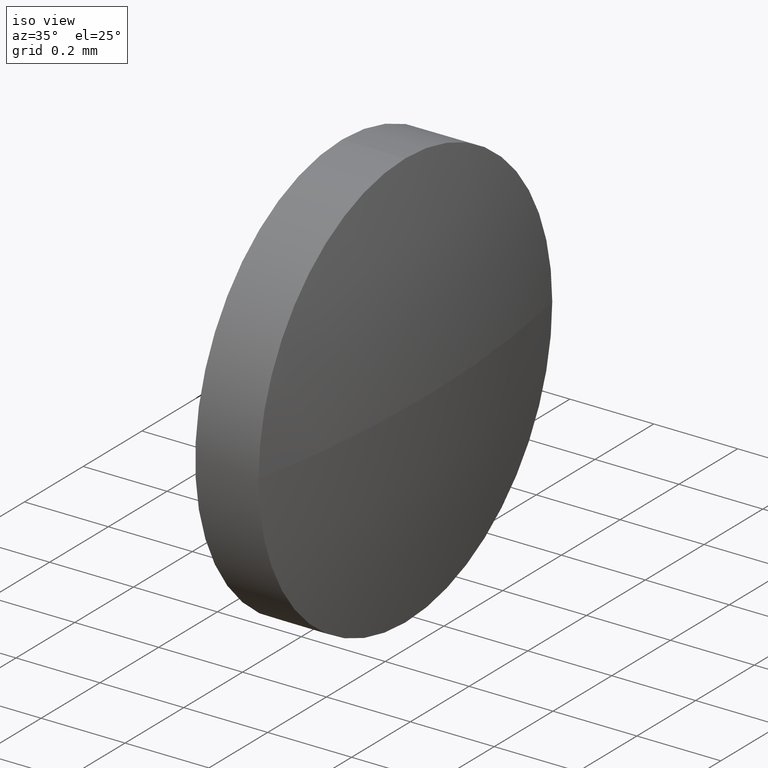
[diagram: clean part render]
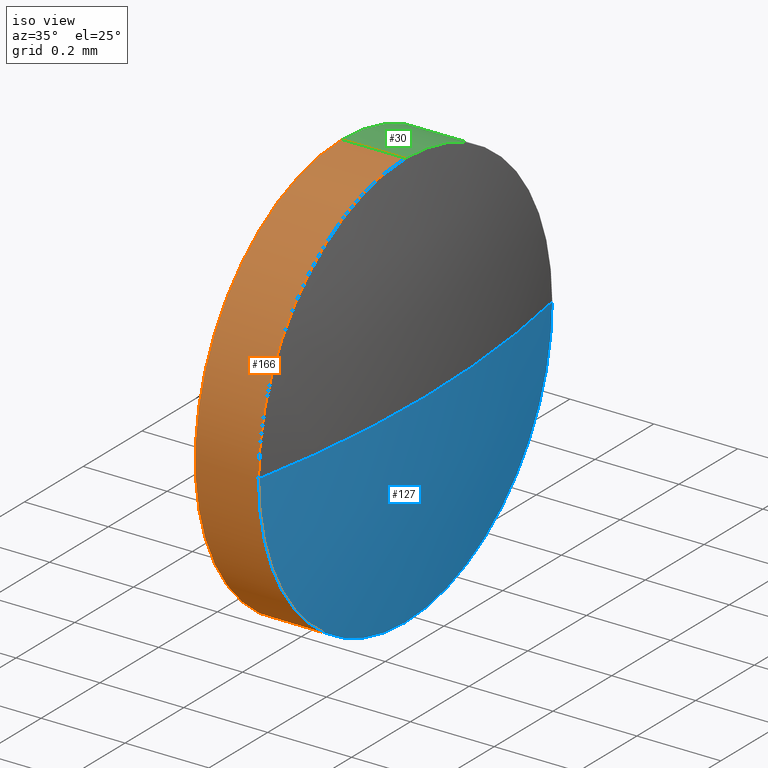
[diagram: same view with three faces highlighted in distinct colors, each labeled with its STEP entity id]
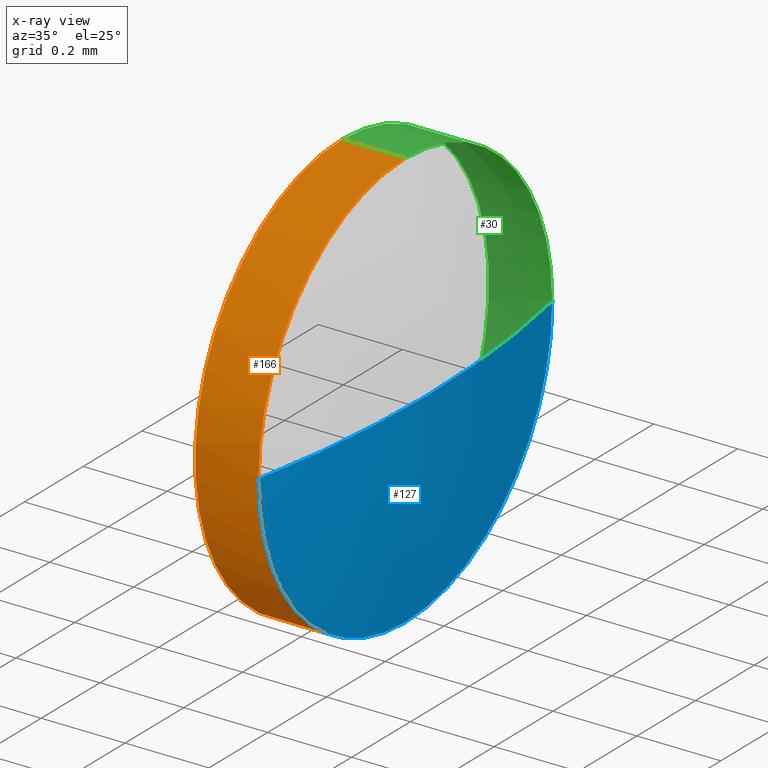
[diagram: x-ray of the same camera — body ghosted, the three highlighted faces saturated]
A machine part, iso view with three faces highlighted in distinct colors.
The next image is the same camera in x-ray (body ghosted, the three faces saturated) — at least one of them is partly hidden behind the body in this view.
Their STEP definitions:

[orange] entity #166 — the highlighted cylindrical surface (partial cylindrical patch) has radius 0.5 mm, axis along (-1, -0, -0).
#2 = VERTEX_POINT ( 'NONE', #139 ) ;
#5 = VERTEX_POINT ( 'NONE', #165 ) ;
#7 = CARTESIAN_POINT ( 'NONE',  ( 51.20413832527503900, 12.93295623006154200, -0.5000000000000004400 ) ) ;
#9 = CARTESIAN_POINT ( 'NONE',  ( 51.10998327809760200, 12.93295623006154200, 0.0000000000000000000 ) ) ;
#15 = ORIENTED_EDGE ( 'NONE', *, *, #149, .T. ) ;
#21 = VERTEX_POINT ( 'NONE', #7 ) ;
#27 = DIRECTION ( 'NONE',  ( -1.000000000000000000, -0.0000000000000000000, -0.0000000000000000000 ) ) ;
#31 = DIRECTION ( 'NONE',  ( -1.000000000000000000, -0.0000000000000000000, -0.0000000000000000000 ) ) ;
#43 = FACE_OUTER_BOUND ( 'NONE', #105, .T. ) ;
#44 = AXIS2_PLACEMENT_3D ( 'NONE', #153, #31, #97 ) ;
#45 = CARTESIAN_POINT ( 'NONE',  ( 51.35513832527504300, 12.93295623006154200, -0.5000000000000004400 ) ) ;
#46 = ORIENTED_EDGE ( 'NONE', *, *, #163, .T. ) ;
#51 = CIRCLE ( 'NONE', #121, 0.5000000000000004400 ) ;
#53 = VECTOR ( 'NONE', #61, 1000.000000000000000 ) ;
#61 = DIRECTION ( 'NONE',  ( -1.000000000000000000, -0.0000000000000000000, -0.0000000000000000000 ) ) ;
#66 = DIRECTION ( 'NONE',  ( -1.000000000000000000, -0.0000000000000000000, -0.0000000000000000000 ) ) ;
#70 = DIRECTION ( 'NONE',  ( 0.0000000000000000000, 0.0000000000000000000, 1.000000000000000000 ) ) ;
#83 = DIRECTION ( 'NONE',  ( -1.000000000000000000, -0.0000000000000000000, -0.0000000000000000000 ) ) ;
#85 = CARTESIAN_POINT ( 'NONE',  ( 51.35513832527504300, 12.93295623006154200, 0.0000000000000000000 ) ) ;
#86 = LINE ( 'NONE', #154, #53 ) ;
#87 = VERTEX_POINT ( 'NONE', #181 ) ;
#90 = ORIENTED_EDGE ( 'NONE', *, *, #145, .F. ) ;
#92 = CARTESIAN_POINT ( 'NONE',  ( 51.10998327809760200, 12.93295623006154200, -0.5000000000000004400 ) ) ;
#95 = DIRECTION ( 'NONE',  ( 0.0000000000000000000, 0.0000000000000000000, 1.000000000000000000 ) ) ;
#97 = DIRECTION ( 'NONE',  ( 0.0000000000000000000, 0.0000000000000000000, 1.000000000000000000 ) ) ;
#105 = EDGE_LOOP ( 'NONE', ( #172, #15, #109, #46, #90 ) ) ;
#107 = AXIS2_PLACEMENT_3D ( 'NONE', #85, #180, #70 ) ;
#109 = ORIENTED_EDGE ( 'NONE', *, *, #174, .T. ) ;
#111 = AXIS2_PLACEMENT_3D ( 'NONE', #9, #83, #128 ) ;
#121 = AXIS2_PLACEMENT_3D ( 'NONE', #141, #27, #95 ) ;
#128 = DIRECTION ( 'NONE',  ( 0.0000000000000000000, 0.0000000000000000000, 1.000000000000000000 ) ) ;
#131 = VERTEX_POINT ( 'NONE', #45 ) ;
#133 = EDGE_CURVE ( 'NONE', #131, #21, #168, .T. ) ;
#139 = CARTESIAN_POINT ( 'NONE',  ( 51.20413832527503900, 12.93295623006154200, 0.5000000000000004400 ) ) ;
#141 = CARTESIAN_POINT ( 'NONE',  ( 51.20413832527503900, 12.93295623006154200, 0.0000000000000000000 ) ) ;
#145 = EDGE_CURVE ( 'NONE', #21, #2, #51, .T. ) ;
#148 = CIRCLE ( 'NONE', #44, 0.5000000000000004400 ) ;
#149 = EDGE_CURVE ( 'NONE', #131, #5, #148, .T. ) ;
#153 = CARTESIAN_POINT ( 'NONE',  ( 51.35513832527504300, 12.93295623006154200, 0.0000000000000000000 ) ) ;
#154 = CARTESIAN_POINT ( 'NONE',  ( 51.10998327809760200, 12.93295623006154200, 0.5000000000000004400 ) ) ;
#158 = VECTOR ( 'NONE', #66, 1000.000000000000000 ) ;
#162 = CIRCLE ( 'NONE', #107, 0.5000000000000004400 ) ;
#163 = EDGE_CURVE ( 'NONE', #87, #2, #86, .T. ) ;
#165 = CARTESIAN_POINT ( 'NONE',  ( 51.35513832527504300, 12.43295623006154400, 0.0000000000000000000 ) ) ;
#166 = ADVANCED_FACE ( 'NONE', ( #43 ), #186, .T. ) ;
#168 = LINE ( 'NONE', #92, #158 ) ;
#172 = ORIENTED_EDGE ( 'NONE', *, *, #133, .F. ) ;
#174 = EDGE_CURVE ( 'NONE', #5, #87, #162, .T. ) ;
#180 = DIRECTION ( 'NONE',  ( -1.000000000000000000, -0.0000000000000000000, -0.0000000000000000000 ) ) ;
#181 = CARTESIAN_POINT ( 'NONE',  ( 51.35513832527504300, 12.93295623006154200, 0.5000000000000004400 ) ) ;
#186 = CYLINDRICAL_SURFACE ( 'NONE', #111, 0.5000000000000004400 ) ;

[blue] entity #127 — the highlighted spherical surface has radius 2.5755 mm.
#4 = CARTESIAN_POINT ( 'NONE',  ( 48.82861791711177800, 12.93295623006154700, 0.0000000000000000000 ) ) ;
#5 = VERTEX_POINT ( 'NONE', #165 ) ;
#6 = DIRECTION ( 'NONE',  ( 0.0000000000000000000, -1.000000000000000000, 0.0000000000000000000 ) ) ;
#12 = EDGE_CURVE ( 'NONE', #115, #138, #100, .T. ) ;
#14 = FACE_OUTER_BOUND ( 'NONE', #60, .T. ) ;
#26 = EDGE_CURVE ( 'NONE', #115, #5, #65, .T. ) ;
#31 = DIRECTION ( 'NONE',  ( -1.000000000000000000, -0.0000000000000000000, -0.0000000000000000000 ) ) ;
#44 = AXIS2_PLACEMENT_3D ( 'NONE', #153, #31, #97 ) ;
#45 = CARTESIAN_POINT ( 'NONE',  ( 51.35513832527504300, 12.93295623006154200, -0.5000000000000004400 ) ) ;
#47 = ORIENTED_EDGE ( 'NONE', *, *, #59, .F. ) ;
#48 = DIRECTION ( 'NONE',  ( 0.0000000000000000000, 0.0000000000000000000, -1.000000000000000000 ) ) ;
#49 = DIRECTION ( 'NONE',  ( -1.000000000000000000, -0.0000000000000000000, -0.0000000000000000000 ) ) ;
#54 = CARTESIAN_POINT ( 'NONE',  ( 51.40413832527504200, 12.93295623006154700, 0.0000000000000000000 ) ) ;
#59 = EDGE_CURVE ( 'NONE', #138, #131, #126, .T. ) ;
#60 = EDGE_LOOP ( 'NONE', ( #68, #72, #146, #47 ) ) ;
#65 = CIRCLE ( 'NONE', #84, 2.575520408163265000 ) ;
#67 = DIRECTION ( 'NONE',  ( 0.0000000000000000000, 0.0000000000000000000, 1.000000000000000000 ) ) ;
#68 = ORIENTED_EDGE ( 'NONE', *, *, #12, .F. ) ;
#72 = ORIENTED_EDGE ( 'NONE', *, *, #26, .T. ) ;
#76 = AXIS2_PLACEMENT_3D ( 'NONE', #125, #112, #93 ) ;
#84 = AXIS2_PLACEMENT_3D ( 'NONE', #177, #48, #114 ) ;
#93 = DIRECTION ( 'NONE',  ( 0.0000000000000000000, -1.000000000000000000, -1.224646799147353500E-016 ) ) ;
#97 = DIRECTION ( 'NONE',  ( 0.0000000000000000000, 0.0000000000000000000, 1.000000000000000000 ) ) ;
#100 = CIRCLE ( 'NONE', #76, 2.575520408163263200 ) ;
#108 = AXIS2_PLACEMENT_3D ( 'NONE', #118, #49, #142 ) ;
#112 = DIRECTION ( 'NONE',  ( 0.0000000000000000000, -1.224646799147353200E-016, 1.000000000000000000 ) ) ;
#114 = DIRECTION ( 'NONE',  ( -1.000000000000000000, 0.0000000000000000000, 0.0000000000000000000 ) ) ;
#115 = VERTEX_POINT ( 'NONE', #54 ) ;
#118 = CARTESIAN_POINT ( 'NONE',  ( 51.35513832527504300, 12.93295623006154200, 0.0000000000000000000 ) ) ;
#125 = CARTESIAN_POINT ( 'NONE',  ( 48.82861791711177800, 12.93295623006154700, 0.0000000000000000000 ) ) ;
#126 = CIRCLE ( 'NONE', #108, 0.5000000000000004400 ) ;
#127 = ADVANCED_FACE ( 'NONE', ( #14 ), #179, .T. ) ;
#130 = AXIS2_PLACEMENT_3D ( 'NONE', #4, #67, #6 ) ;
#131 = VERTEX_POINT ( 'NONE', #45 ) ;
#135 = CARTESIAN_POINT ( 'NONE',  ( 51.35513832527504300, 13.43295623006154200, 6.123233995736726600E-017 ) ) ;
#138 = VERTEX_POINT ( 'NONE', #135 ) ;
#142 = DIRECTION ( 'NONE',  ( 0.0000000000000000000, 0.0000000000000000000, 1.000000000000000000 ) ) ;
#146 = ORIENTED_EDGE ( 'NONE', *, *, #149, .F. ) ;
#148 = CIRCLE ( 'NONE', #44, 0.5000000000000004400 ) ;
#149 = EDGE_CURVE ( 'NONE', #131, #5, #148, .T. ) ;
#153 = CARTESIAN_POINT ( 'NONE',  ( 51.35513832527504300, 12.93295623006154200, 0.0000000000000000000 ) ) ;
#165 = CARTESIAN_POINT ( 'NONE',  ( 51.35513832527504300, 12.43295623006154400, 0.0000000000000000000 ) ) ;
#177 = CARTESIAN_POINT ( 'NONE',  ( 48.82861791711177800, 12.93295623006154700, 0.0000000000000000000 ) ) ;
#179 = SPHERICAL_SURFACE ( 'NONE', #130, 2.575520408163264100 ) ;

[green] entity #30 — the highlighted cylindrical surface (partial cylindrical patch) has radius 0.5 mm, axis along (-1, -0, -0).
#2 = VERTEX_POINT ( 'NONE', #139 ) ;
#3 = EDGE_CURVE ( 'NONE', #87, #138, #28, .T. ) ;
#7 = CARTESIAN_POINT ( 'NONE',  ( 51.20413832527503900, 12.93295623006154200, -0.5000000000000004400 ) ) ;
#13 = DIRECTION ( 'NONE',  ( -1.000000000000000000, -0.0000000000000000000, -0.0000000000000000000 ) ) ;
#16 = DIRECTION ( 'NONE',  ( 0.0000000000000000000, 0.0000000000000000000, 1.000000000000000000 ) ) ;
#21 = VERTEX_POINT ( 'NONE', #7 ) ;
#22 = CARTESIAN_POINT ( 'NONE',  ( 51.10998327809760200, 12.93295623006154200, 0.0000000000000000000 ) ) ;
#23 = DIRECTION ( 'NONE',  ( 0.0000000000000000000, 0.0000000000000000000, 1.000000000000000000 ) ) ;
#28 = CIRCLE ( 'NONE', #52, 0.5000000000000004400 ) ;
#30 = ADVANCED_FACE ( 'NONE', ( #171 ), #151, .T. ) ;
#34 = ORIENTED_EDGE ( 'NONE', *, *, #59, .T. ) ;
#39 = EDGE_CURVE ( 'NONE', #2, #21, #58, .T. ) ;
#41 = ORIENTED_EDGE ( 'NONE', *, *, #3, .T. ) ;
#45 = CARTESIAN_POINT ( 'NONE',  ( 51.35513832527504300, 12.93295623006154200, -0.5000000000000004400 ) ) ;
#49 = DIRECTION ( 'NONE',  ( -1.000000000000000000, -0.0000000000000000000, -0.0000000000000000000 ) ) ;
#52 = AXIS2_PLACEMENT_3D ( 'NONE', #136, #137, #152 ) ;
#53 = VECTOR ( 'NONE', #61, 1000.000000000000000 ) ;
#58 = CIRCLE ( 'NONE', #91, 0.5000000000000004400 ) ;
#59 = EDGE_CURVE ( 'NONE', #138, #131, #126, .T. ) ;
#61 = DIRECTION ( 'NONE',  ( -1.000000000000000000, -0.0000000000000000000, -0.0000000000000000000 ) ) ;
#64 = ORIENTED_EDGE ( 'NONE', *, *, #163, .F. ) ;
#66 = DIRECTION ( 'NONE',  ( -1.000000000000000000, -0.0000000000000000000, -0.0000000000000000000 ) ) ;
#80 = DIRECTION ( 'NONE',  ( -1.000000000000000000, -0.0000000000000000000, -0.0000000000000000000 ) ) ;
#86 = LINE ( 'NONE', #154, #53 ) ;
#87 = VERTEX_POINT ( 'NONE', #181 ) ;
#91 = AXIS2_PLACEMENT_3D ( 'NONE', #98, #13, #16 ) ;
#92 = CARTESIAN_POINT ( 'NONE',  ( 51.10998327809760200, 12.93295623006154200, -0.5000000000000004400 ) ) ;
#98 = CARTESIAN_POINT ( 'NONE',  ( 51.20413832527503900, 12.93295623006154200, 0.0000000000000000000 ) ) ;
#108 = AXIS2_PLACEMENT_3D ( 'NONE', #118, #49, #142 ) ;
#117 = AXIS2_PLACEMENT_3D ( 'NONE', #22, #80, #23 ) ;
#118 = CARTESIAN_POINT ( 'NONE',  ( 51.35513832527504300, 12.93295623006154200, 0.0000000000000000000 ) ) ;
#126 = CIRCLE ( 'NONE', #108, 0.5000000000000004400 ) ;
#131 = VERTEX_POINT ( 'NONE', #45 ) ;
#133 = EDGE_CURVE ( 'NONE', #131, #21, #168, .T. ) ;
#135 = CARTESIAN_POINT ( 'NONE',  ( 51.35513832527504300, 13.43295623006154200, 6.123233995736726600E-017 ) ) ;
#136 = CARTESIAN_POINT ( 'NONE',  ( 51.35513832527504300, 12.93295623006154200, 0.0000000000000000000 ) ) ;
#137 = DIRECTION ( 'NONE',  ( -1.000000000000000000, -0.0000000000000000000, -0.0000000000000000000 ) ) ;
#138 = VERTEX_POINT ( 'NONE', #135 ) ;
#139 = CARTESIAN_POINT ( 'NONE',  ( 51.20413832527503900, 12.93295623006154200, 0.5000000000000004400 ) ) ;
#142 = DIRECTION ( 'NONE',  ( 0.0000000000000000000, 0.0000000000000000000, 1.000000000000000000 ) ) ;
#151 = CYLINDRICAL_SURFACE ( 'NONE', #117, 0.5000000000000004400 ) ;
#152 = DIRECTION ( 'NONE',  ( 0.0000000000000000000, 0.0000000000000000000, 1.000000000000000000 ) ) ;
#154 = CARTESIAN_POINT ( 'NONE',  ( 51.10998327809760200, 12.93295623006154200, 0.5000000000000004400 ) ) ;
#158 = VECTOR ( 'NONE', #66, 1000.000000000000000 ) ;
#159 = ORIENTED_EDGE ( 'NONE', *, *, #133, .T. ) ;
#163 = EDGE_CURVE ( 'NONE', #87, #2, #86, .T. ) ;
#168 = LINE ( 'NONE', #92, #158 ) ;
#171 = FACE_OUTER_BOUND ( 'NONE', #182, .T. ) ;
#178 = ORIENTED_EDGE ( 'NONE', *, *, #39, .F. ) ;
#181 = CARTESIAN_POINT ( 'NONE',  ( 51.35513832527504300, 12.93295623006154200, 0.5000000000000004400 ) ) ;
#182 = EDGE_LOOP ( 'NONE', ( #34, #159, #178, #64, #41 ) ) ;